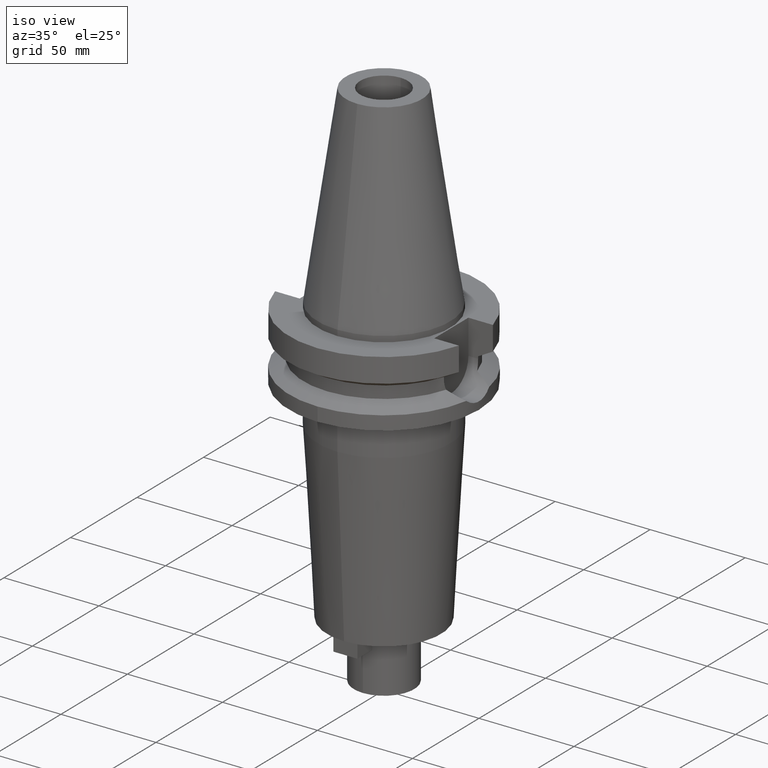
[diagram: clean part render]
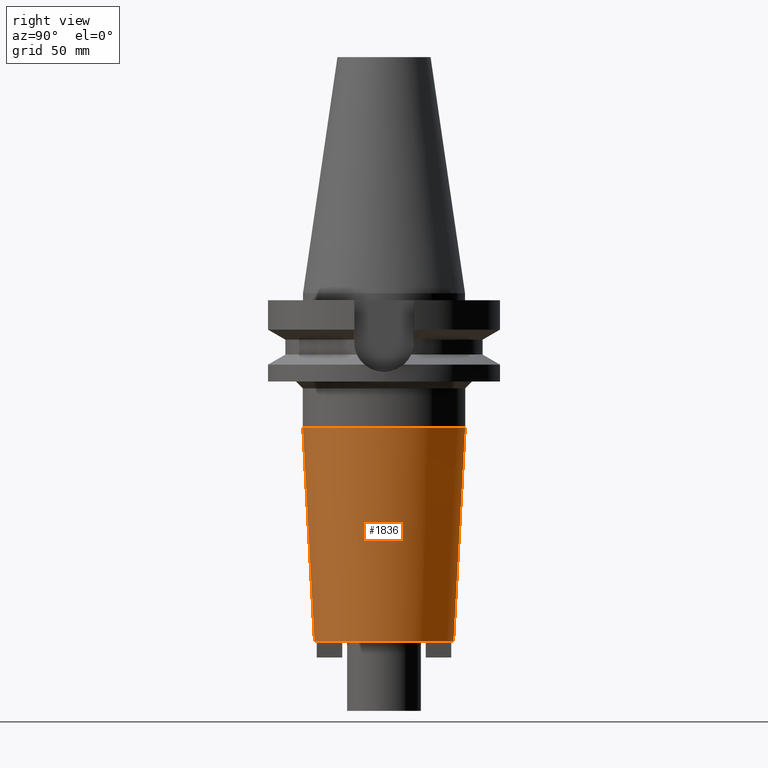
[diagram: tour spotlight — one face highlighted and labeled with its STEP entity id]
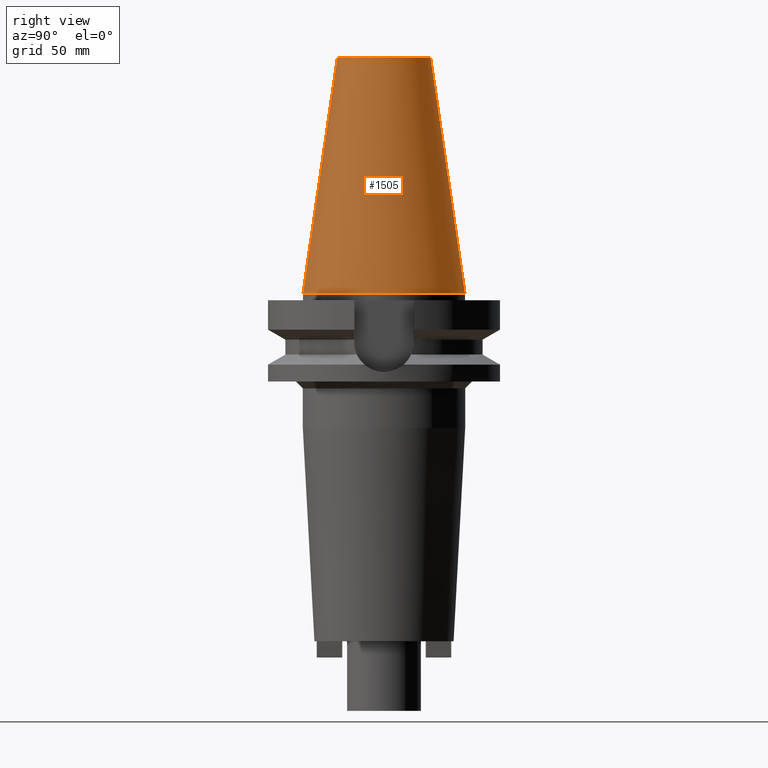
[diagram: tour spotlight — one face highlighted and labeled with its STEP entity id]
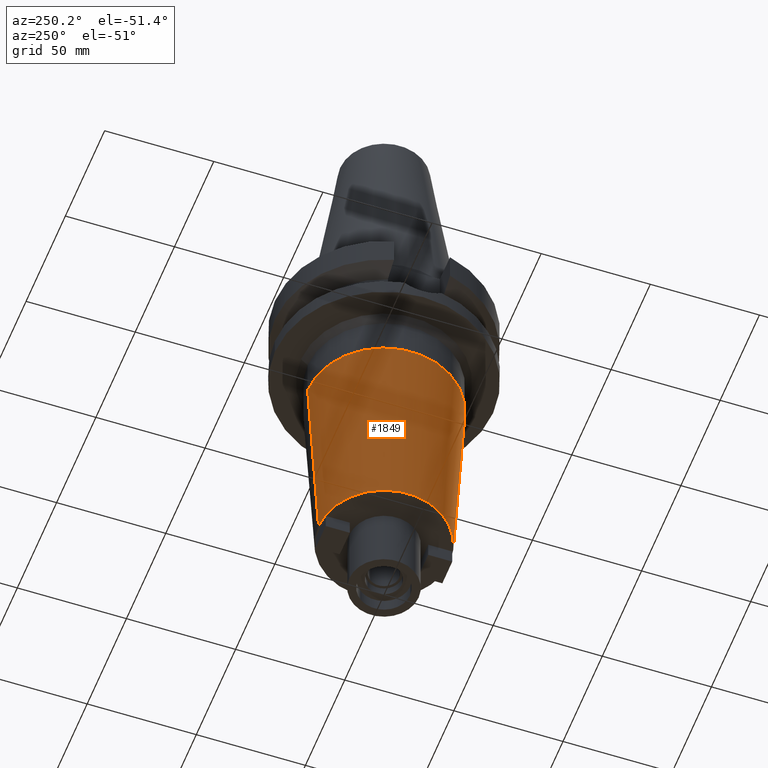
[diagram: tour spotlight — one face highlighted and labeled with its STEP entity id]
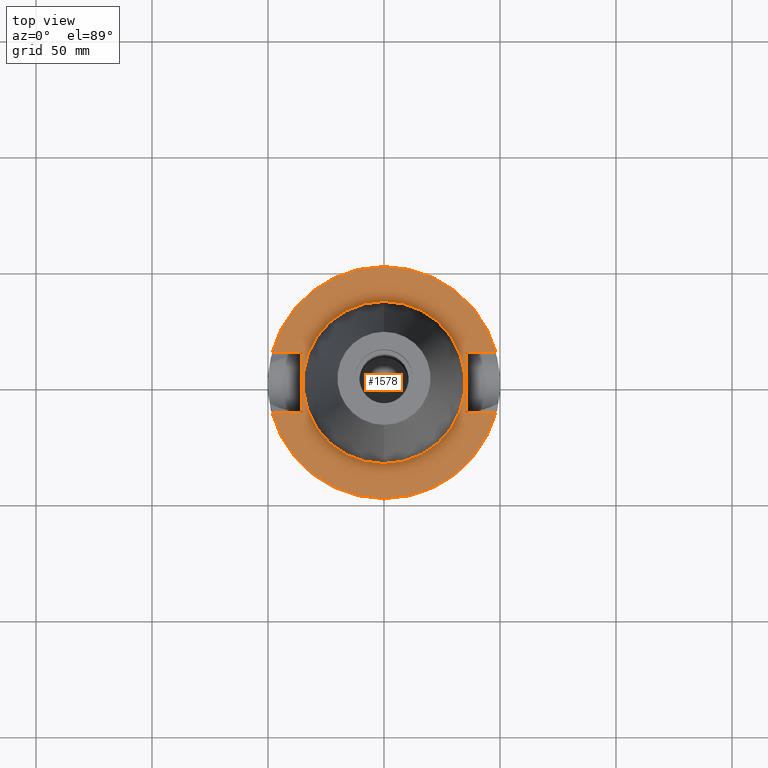
[diagram: tour spotlight — one face highlighted and labeled with its STEP entity id]
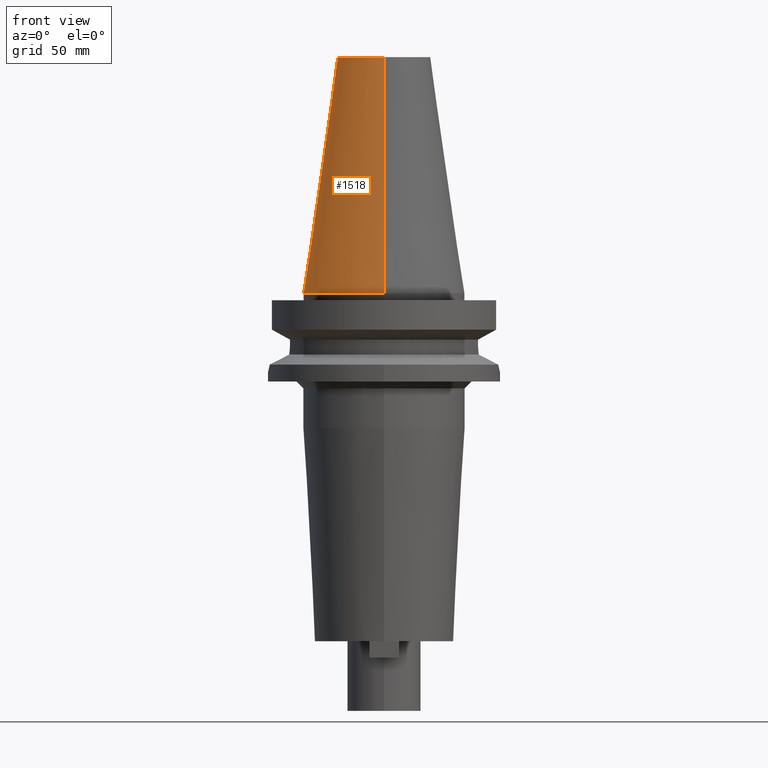
[diagram: tour spotlight — one face highlighted and labeled with its STEP entity id]
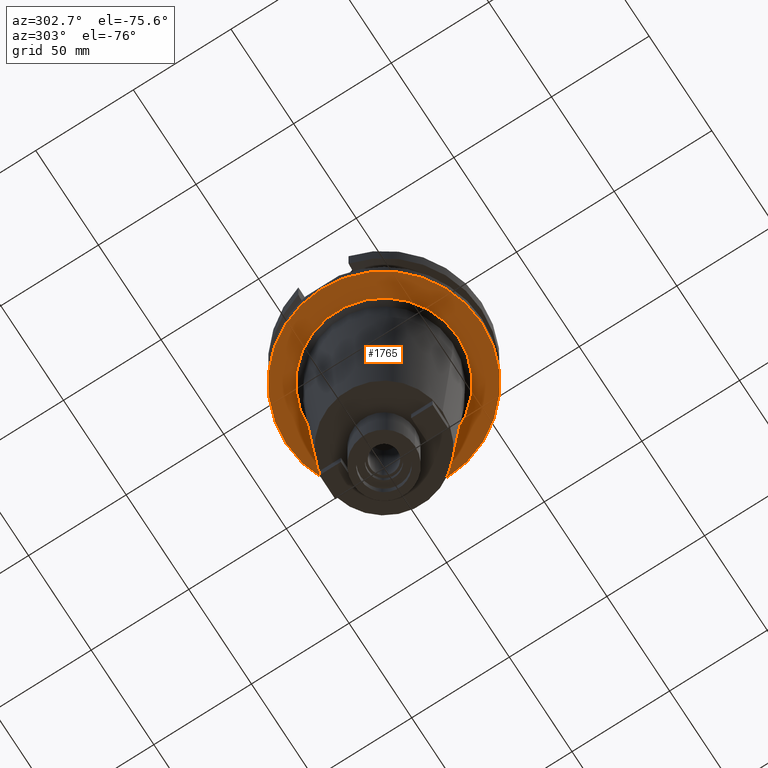
[diagram: tour spotlight — one face highlighted and labeled with its STEP entity id]
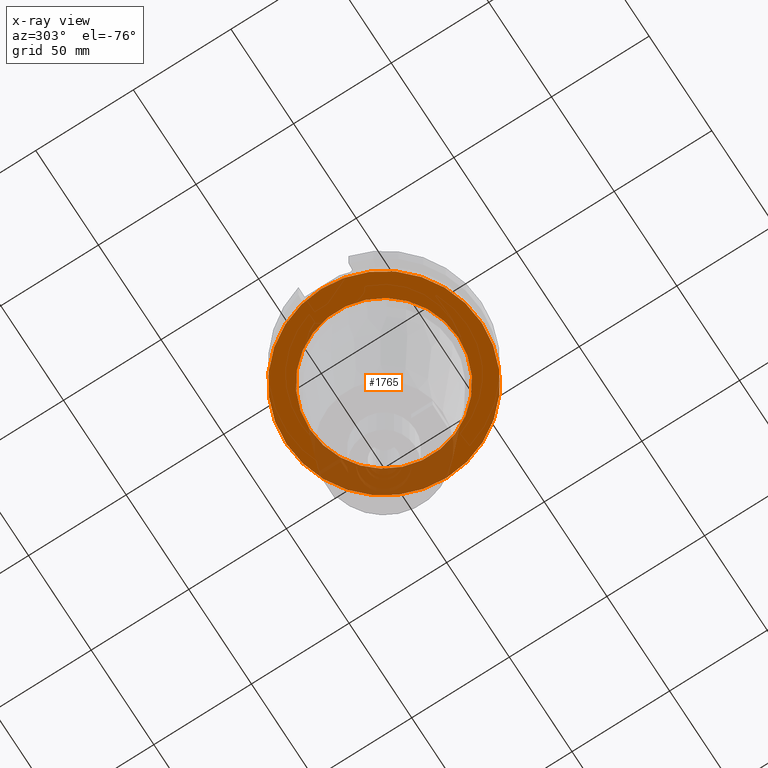
[diagram: x-ray of the same camera — body ghosted, this tour face saturated]
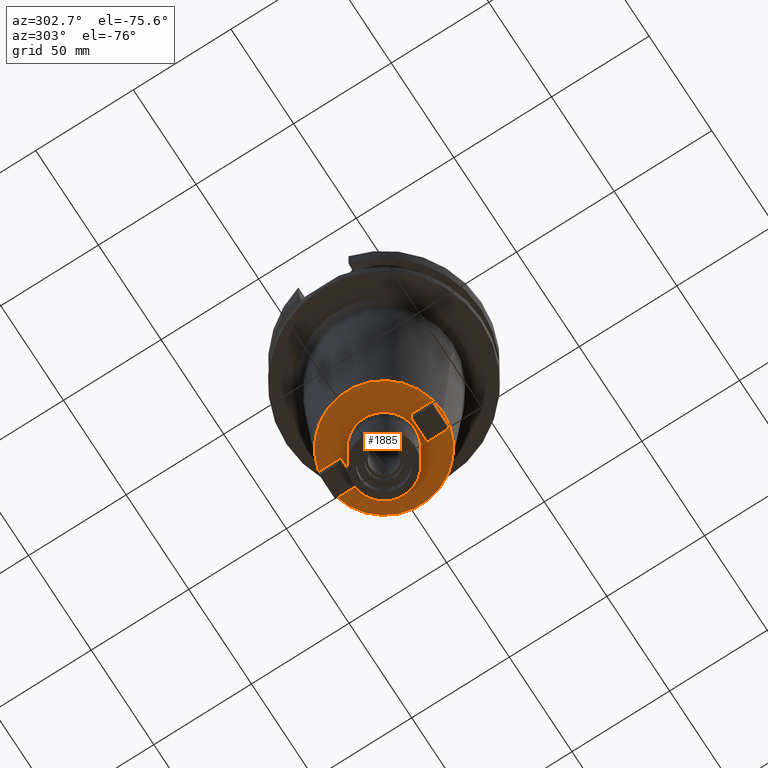
[diagram: tour spotlight — one face highlighted and labeled with its STEP entity id]
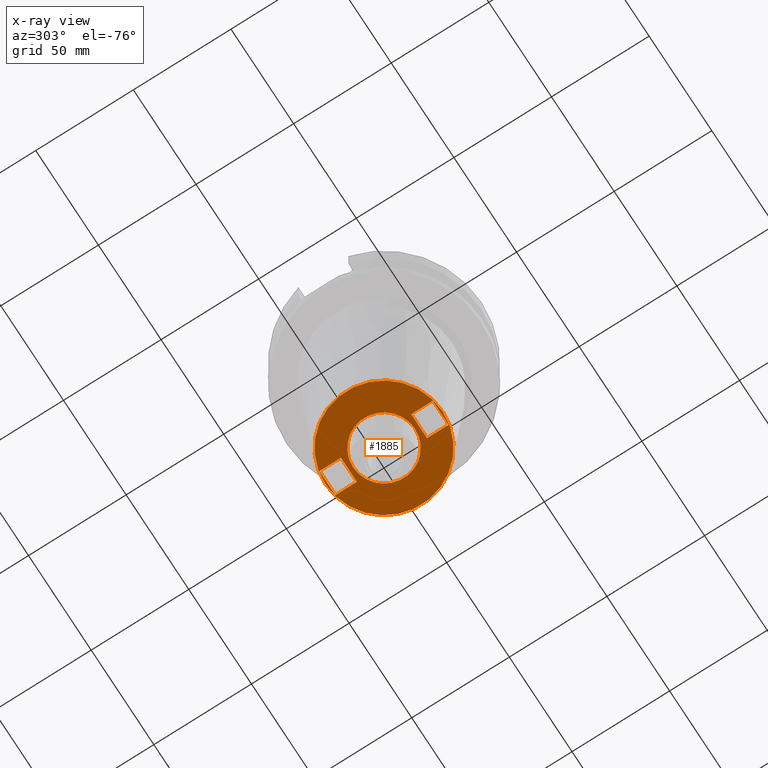
[diagram: x-ray of the same camera — body ghosted, this tour face saturated]
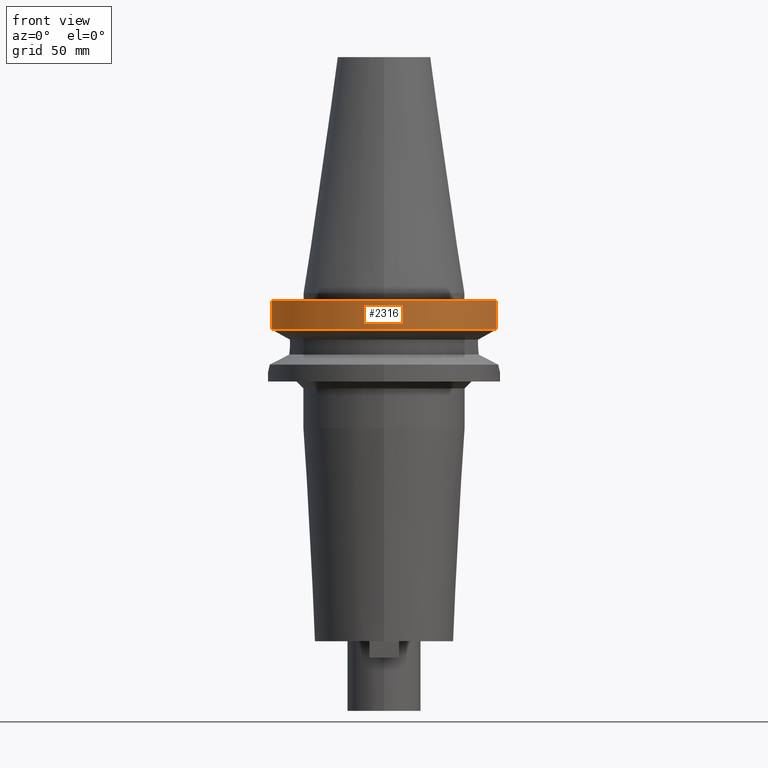
[diagram: tour spotlight — one face highlighted and labeled with its STEP entity id]
A machine part: a face-by-face anatomy tour. The part has 62 B-rep faces; the first image is the clean iso view, then the 8 largest visible faces are spotlighted one at a time (largest first), each with its STEP entity span.

Face 1 — right view, entity #1836. In plain terms, the highlighted conical surface has half-angle 3.111 deg.
Definition (entity closure, byte-faithful):
#577=DIRECTION('',(0.E0,-5.426774024273E-2,-9.985264204662E-1));
#578=VECTOR('',#577,9.213576938410E1);
#579=CARTESIAN_POINT('',(0.E0,3.5E1,-5.8E1));
#580=LINE('',#579,#578);
#584=CARTESIAN_POINT('',(0.E0,0.E0,-5.8E1));
#585=DIRECTION('',(0.E0,0.E0,1.E0));
#586=DIRECTION('',(0.E0,-1.E0,0.E0));
#587=AXIS2_PLACEMENT_3D('',#584,#585,#586);
#600=DIRECTION('',(0.E0,5.426774024273E-2,-9.985264204662E-1));
#601=VECTOR('',#600,9.213576938410E1);
#602=CARTESIAN_POINT('',(0.E0,-3.5E1,-5.8E1));
#603=LINE('',#602,#601);
#615=CARTESIAN_POINT('',(0.E0,0.E0,-1.5E2));
#616=DIRECTION('',(0.E0,0.E0,1.E0));
#617=DIRECTION('',(0.E0,-1.E0,0.E0));
#618=AXIS2_PLACEMENT_3D('',#615,#616,#617);
#1308=CARTESIAN_POINT('',(0.E0,3.5E1,-5.8E1));
#1309=VERTEX_POINT('',#1308);
#1310=CARTESIAN_POINT('',(0.E0,-3.5E1,-5.8E1));
#1311=VERTEX_POINT('',#1310);
#1312=CARTESIAN_POINT('',(0.E0,3.E1,-1.5E2));
#1313=VERTEX_POINT('',#1312);
#1314=CARTESIAN_POINT('',(0.E0,-3.E1,-1.5E2));
#1315=VERTEX_POINT('',#1314);
#1822=CARTESIAN_POINT('',(0.E0,0.E0,-1.04E2));
#1823=DIRECTION('',(0.E0,0.E0,1.E0));
#1824=DIRECTION('',(0.E0,1.E0,0.E0));
#1825=AXIS2_PLACEMENT_3D('',#1822,#1823,#1824);
#1826=CONICAL_SURFACE('',#1825,3.25E1,3.110840653491E0);
#1828=ORIENTED_EDGE('',*,*,#1827,.T.);
#1830=ORIENTED_EDGE('',*,*,#1829,.F.);
#1832=ORIENTED_EDGE('',*,*,#1831,.F.);
#1833=ORIENTED_EDGE('',*,*,#1815,.T.);
#1834=EDGE_LOOP('',(#1828,#1830,#1832,#1833));
#1835=FACE_OUTER_BOUND('',#1834,.F.);
#588=CIRCLE('',#587,3.5E1);
#619=CIRCLE('',#618,3.E1);
#1815=EDGE_CURVE('',#1311,#1309,#588,.T.);
#1827=EDGE_CURVE('',#1309,#1313,#580,.T.);
#1829=EDGE_CURVE('',#1315,#1313,#619,.T.);
#1831=EDGE_CURVE('',#1311,#1315,#603,.T.);
#1836=ADVANCED_FACE('',(#1835),#1826,.T.);

Face 2 — right view, entity #1505. In plain terms, the highlighted conical surface has half-angle 8.297 deg.
Definition (entity closure, byte-faithful):
#94=CARTESIAN_POINT('',(0.E0,1.847992019913E-14,1.018E2));
#95=DIRECTION('',(0.E0,0.E0,-1.E0));
#96=DIRECTION('',(0.E0,1.E0,0.E0));
#97=AXIS2_PLACEMENT_3D('',#94,#95,#96);
#126=DIRECTION('',(0.E0,1.443043893539E-1,-9.895333461856E-1));
#127=VECTOR('',#126,1.028767755957E2);
#128=CARTESIAN_POINT('',(0.E0,2.007942971896E1,1.018E2));
#129=LINE('',#128,#127);
#133=CARTESIAN_POINT('',(0.E0,1.847992019913E-14,6.252776074689E-13));
#134=DIRECTION('',(0.E0,0.E0,-1.E0));
#135=DIRECTION('',(0.E0,1.E0,0.E0));
#136=AXIS2_PLACEMENT_3D('',#133,#134,#135);
#141=DIRECTION('',(0.E0,-1.443043893539E-1,-9.895333461856E-1));
#142=VECTOR('',#141,1.028767755957E2);
#143=CARTESIAN_POINT('',(0.E0,-2.007942971896E1,1.018E2));
#144=LINE('',#143,#142);
#1214=CARTESIAN_POINT('',(0.E0,2.007942971896E1,1.018E2));
#1215=CARTESIAN_POINT('',(0.E0,-2.007942971896E1,1.018E2));
#1216=VERTEX_POINT('',#1214);
#1217=VERTEX_POINT('',#1215);
#1218=CARTESIAN_POINT('',(0.E0,3.4925E1,5.400124791777E-13));
#1219=VERTEX_POINT('',#1218);
#1220=CARTESIAN_POINT('',(0.E0,-3.4925E1,6.252776074689E-13));
#1221=VERTEX_POINT('',#1220);
#1491=CARTESIAN_POINT('',(0.E0,1.847992019913E-14,5.09E1));
#1492=DIRECTION('',(0.E0,0.E0,-1.E0));
#1493=DIRECTION('',(0.E0,-1.E0,0.E0));
#1494=AXIS2_PLACEMENT_3D('',#1491,#1492,#1493);
#1495=CONICAL_SURFACE('',#1494,2.750221485948E1,8.297E0);
#1497=ORIENTED_EDGE('',*,*,#1496,.T.);
#1499=ORIENTED_EDGE('',*,*,#1498,.T.);
#1501=ORIENTED_EDGE('',*,*,#1500,.F.);
#1502=ORIENTED_EDGE('',*,*,#1480,.F.);
#1503=EDGE_LOOP('',(#1497,#1499,#1501,#1502));
#1504=FACE_OUTER_BOUND('',#1503,.F.);
#98=CIRCLE('',#97,2.007942971896E1);
#137=CIRCLE('',#136,3.4925E1);
#1480=EDGE_CURVE('',#1216,#1217,#98,.T.);
#1496=EDGE_CURVE('',#1216,#1219,#129,.T.);
#1498=EDGE_CURVE('',#1219,#1221,#137,.T.);
#1500=EDGE_CURVE('',#1217,#1221,#144,.T.);
#1505=ADVANCED_FACE('',(#1504),#1495,.T.);

Face 3 — auxiliary view, entity #1849. In plain terms, the highlighted conical surface has half-angle 3.111 deg.
Definition (entity closure, byte-faithful):
#577=DIRECTION('',(0.E0,-5.426774024273E-2,-9.985264204662E-1));
#578=VECTOR('',#577,9.213576938410E1);
#579=CARTESIAN_POINT('',(0.E0,3.5E1,-5.8E1));
#580=LINE('',#579,#578);
#592=CARTESIAN_POINT('',(0.E0,0.E0,-5.8E1));
#593=DIRECTION('',(0.E0,0.E0,1.E0));
#594=DIRECTION('',(0.E0,1.E0,0.E0));
#595=AXIS2_PLACEMENT_3D('',#592,#593,#594);
#600=DIRECTION('',(0.E0,5.426774024273E-2,-9.985264204662E-1));
#601=VECTOR('',#600,9.213576938410E1);
#602=CARTESIAN_POINT('',(0.E0,-3.5E1,-5.8E1));
#603=LINE('',#602,#601);
#607=CARTESIAN_POINT('',(0.E0,0.E0,-1.5E2));
#608=DIRECTION('',(0.E0,0.E0,1.E0));
#609=DIRECTION('',(0.E0,1.E0,0.E0));
#610=AXIS2_PLACEMENT_3D('',#607,#608,#609);
#1308=CARTESIAN_POINT('',(0.E0,3.5E1,-5.8E1));
#1309=VERTEX_POINT('',#1308);
#1310=CARTESIAN_POINT('',(0.E0,-3.5E1,-5.8E1));
#1311=VERTEX_POINT('',#1310);
#1312=CARTESIAN_POINT('',(0.E0,3.E1,-1.5E2));
#1313=VERTEX_POINT('',#1312);
#1314=CARTESIAN_POINT('',(0.E0,-3.E1,-1.5E2));
#1315=VERTEX_POINT('',#1314);
#1837=CARTESIAN_POINT('',(0.E0,0.E0,-1.04E2));
#1838=DIRECTION('',(0.E0,0.E0,1.E0));
#1839=DIRECTION('',(0.E0,1.E0,0.E0));
#1840=AXIS2_PLACEMENT_3D('',#1837,#1838,#1839);
#1841=CONICAL_SURFACE('',#1840,3.25E1,3.110840653491E0);
#1842=ORIENTED_EDGE('',*,*,#1827,.F.);
#1843=ORIENTED_EDGE('',*,*,#1804,.T.);
#1844=ORIENTED_EDGE('',*,*,#1831,.T.);
#1846=ORIENTED_EDGE('',*,*,#1845,.F.);
#1847=EDGE_LOOP('',(#1842,#1843,#1844,#1846));
#1848=FACE_OUTER_BOUND('',#1847,.F.);
#596=CIRCLE('',#595,3.5E1);
#611=CIRCLE('',#610,3.E1);
#1804=EDGE_CURVE('',#1309,#1311,#596,.T.);
#1827=EDGE_CURVE('',#1309,#1313,#580,.T.);
#1831=EDGE_CURVE('',#1311,#1315,#603,.T.);
#1845=EDGE_CURVE('',#1313,#1315,#611,.T.);
#1849=ADVANCED_FACE('',(#1848),#1841,.T.);

Face 4 — top view, entity #1578. In plain terms, the highlighted planar face has unit normal (0, 0, -1).
Definition (entity closure, byte-faithful):
#170=DIRECTION('',(0.E0,1.E0,0.E0));
#171=VECTOR('',#170,2.57E1);
#172=CARTESIAN_POINT('',(-3.54E1,-1.285E1,-3.E0));
#173=LINE('',#172,#171);
#177=DIRECTION('',(-1.E0,0.E0,0.E0));
#178=VECTOR('',#177,1.292057015392E1);
#179=CARTESIAN_POINT('',(-3.54E1,1.285E1,-3.E0));
#180=LINE('',#179,#178);
#184=CARTESIAN_POINT('',(0.E0,2.643889974679E-14,-3.E0));
#185=DIRECTION('',(0.E0,0.E0,-1.E0));
#186=DIRECTION('',(-9.664114030784E-1,2.57E-1,0.E0));
#187=AXIS2_PLACEMENT_3D('',#184,#185,#186);
#192=CARTESIAN_POINT('',(0.E0,2.643889974679E-14,-3.E0));
#193=DIRECTION('',(0.E0,0.E0,-1.E0));
#194=DIRECTION('',(0.E0,1.E0,0.E0));
#195=AXIS2_PLACEMENT_3D('',#192,#193,#194);
#200=DIRECTION('',(0.E0,-1.E0,0.E0));
#201=VECTOR('',#200,2.57E1);
#202=CARTESIAN_POINT('',(3.54E1,1.285E1,-3.E0));
#203=LINE('',#202,#201);
#207=DIRECTION('',(1.E0,0.E0,0.E0));
#208=VECTOR('',#207,1.292057015392E1);
#209=CARTESIAN_POINT('',(3.54E1,-1.285E1,-3.E0));
#210=LINE('',#209,#208);
#214=CARTESIAN_POINT('',(0.E0,2.643889974679E-14,-3.E0));
#215=DIRECTION('',(0.E0,0.E0,-1.E0));
#216=DIRECTION('',(9.664114030784E-1,-2.57E-1,0.E0));
#217=AXIS2_PLACEMENT_3D('',#214,#215,#216);
#222=CARTESIAN_POINT('',(0.E0,2.643889974679E-14,-3.E0));
#223=DIRECTION('',(0.E0,0.E0,-1.E0));
#224=DIRECTION('',(0.E0,-1.E0,0.E0));
#225=AXIS2_PLACEMENT_3D('',#222,#223,#224);
#230=CARTESIAN_POINT('',(0.E0,2.643889974679E-14,-3.E0));
#231=DIRECTION('',(0.E0,0.E0,1.E0));
#232=DIRECTION('',(0.E0,1.E0,0.E0));
#233=AXIS2_PLACEMENT_3D('',#230,#231,#232);
#238=CARTESIAN_POINT('',(0.E0,2.643889974679E-14,-3.E0));
#239=DIRECTION('',(0.E0,0.E0,1.E0));
#240=DIRECTION('',(0.E0,-1.E0,0.E0));
#241=AXIS2_PLACEMENT_3D('',#238,#239,#240);
#276=DIRECTION('',(-1.E0,0.E0,0.E0));
#277=VECTOR('',#276,1.292057015392E1);
#278=CARTESIAN_POINT('',(-3.54E1,-1.285E1,-3.E0));
#279=LINE('',#278,#277);
#1039=DIRECTION('',(1.E0,0.E0,0.E0));
#1040=VECTOR('',#1039,1.292057015392E1);
#1041=CARTESIAN_POINT('',(3.54E1,1.285E1,-3.E0));
#1042=LINE('',#1041,#1040);
#1222=CARTESIAN_POINT('',(0.E0,3.4925E1,-3.E0));
#1223=VERTEX_POINT('',#1222);
#1224=CARTESIAN_POINT('',(0.E0,-3.4925E1,-3.E0));
#1225=VERTEX_POINT('',#1224);
#1226=CARTESIAN_POINT('',(-3.54E1,-1.285E1,-3.E0));
#1227=CARTESIAN_POINT('',(-3.54E1,1.285E1,-3.E0));
#1228=VERTEX_POINT('',#1226);
#1229=VERTEX_POINT('',#1227);
#1230=CARTESIAN_POINT('',(-4.832057015392E1,1.285E1,-3.E0));
#1231=VERTEX_POINT('',#1230);
#1232=CARTESIAN_POINT('',(-1.065814103640E-14,5.E1,-3.E0));
#1233=CARTESIAN_POINT('',(4.832057015392E1,1.285E1,-3.E0));
#1234=VERTEX_POINT('',#1232);
#1235=VERTEX_POINT('',#1233);
#1236=CARTESIAN_POINT('',(3.54E1,1.285E1,-3.E0));
#1237=VERTEX_POINT('',#1236);
#1238=CARTESIAN_POINT('',(3.54E1,-1.285E1,-3.E0));
#1239=VERTEX_POINT('',#1238);
#1240=CARTESIAN_POINT('',(4.832057015392E1,-1.285E1,-3.E0));
#1241=VERTEX_POINT('',#1240);
#1242=CARTESIAN_POINT('',(1.065814103640E-14,-5.E1,-3.E0));
#1243=CARTESIAN_POINT('',(-4.832057015392E1,-1.285E1,-3.E0));
#1244=VERTEX_POINT('',#1242);
#1245=VERTEX_POINT('',#1243);
#1547=CARTESIAN_POINT('',(0.E0,1.187907395173E-14,-3.E0));
#1548=DIRECTION('',(0.E0,0.E0,-1.E0));
#1549=DIRECTION('',(0.E0,-1.E0,0.E0));
#1550=AXIS2_PLACEMENT_3D('',#1547,#1548,#1549);
#1551=PLANE('',#1550);
#1553=ORIENTED_EDGE('',*,*,#1552,.T.);
#1555=ORIENTED_EDGE('',*,*,#1554,.T.);
#1557=ORIENTED_EDGE('',*,*,#1556,.T.);
#1559=ORIENTED_EDGE('',*,*,#1558,.T.);
#1561=ORIENTED_EDGE('',*,*,#1560,.F.);
#1563=ORIENTED_EDGE('',*,*,#1562,.T.);
#1565=ORIENTED_EDGE('',*,*,#1564,.T.);
#1567=ORIENTED_EDGE('',*,*,#1566,.T.);
#1569=ORIENTED_EDGE('',*,*,#1568,.T.);
#1571=ORIENTED_EDGE('',*,*,#1570,.F.);
#1572=EDGE_LOOP('',(#1553,#1555,#1557,#1559,#1561,#1563,#1565,#1567,#1569,
#1571));
#1573=FACE_OUTER_BOUND('',#1572,.F.);
#1574=ORIENTED_EDGE('',*,*,#1529,.T.);
#1575=ORIENTED_EDGE('',*,*,#1540,.T.);
#1576=EDGE_LOOP('',(#1574,#1575));
#1577=FACE_BOUND('',#1576,.F.);
#188=CIRCLE('',#187,5.E1);
#196=CIRCLE('',#195,5.E1);
#218=CIRCLE('',#217,5.E1);
#226=CIRCLE('',#225,5.E1);
#234=CIRCLE('',#233,3.4925E1);
#242=CIRCLE('',#241,3.4925E1);
#1529=EDGE_CURVE('',#1223,#1225,#234,.T.);
#1540=EDGE_CURVE('',#1225,#1223,#242,.T.);
#1552=EDGE_CURVE('',#1228,#1229,#173,.T.);
#1554=EDGE_CURVE('',#1229,#1231,#180,.T.);
#1556=EDGE_CURVE('',#1231,#1234,#188,.T.);
#1558=EDGE_CURVE('',#1234,#1235,#196,.T.);
#1560=EDGE_CURVE('',#1237,#1235,#1042,.T.);
#1562=EDGE_CURVE('',#1237,#1239,#203,.T.);
#1564=EDGE_CURVE('',#1239,#1241,#210,.T.);
#1566=EDGE_CURVE('',#1241,#1244,#218,.T.);
#1568=EDGE_CURVE('',#1244,#1245,#226,.T.);
#1570=EDGE_CURVE('',#1228,#1245,#279,.T.);
#1578=ADVANCED_FACE('',(#1573,#1577),#1551,.F.);

Face 5 — front view, entity #1518. In plain terms, the highlighted conical surface has half-angle 8.297 deg.
Definition (entity closure, byte-faithful):
#102=CARTESIAN_POINT('',(0.E0,1.847992019913E-14,1.018E2));
#103=DIRECTION('',(0.E0,0.E0,-1.E0));
#104=DIRECTION('',(0.E0,-1.E0,0.E0));
#105=AXIS2_PLACEMENT_3D('',#102,#103,#104);
#126=DIRECTION('',(0.E0,1.443043893539E-1,-9.895333461856E-1));
#127=VECTOR('',#126,1.028767755957E2);
#128=CARTESIAN_POINT('',(0.E0,2.007942971896E1,1.018E2));
#129=LINE('',#128,#127);
#141=DIRECTION('',(0.E0,-1.443043893539E-1,-9.895333461856E-1));
#142=VECTOR('',#141,1.028767755957E2);
#143=CARTESIAN_POINT('',(0.E0,-2.007942971896E1,1.018E2));
#144=LINE('',#143,#142);
#148=CARTESIAN_POINT('',(0.E0,1.847992019913E-14,6.252776074689E-13));
#149=DIRECTION('',(0.E0,0.E0,-1.E0));
#150=DIRECTION('',(0.E0,-1.E0,0.E0));
#151=AXIS2_PLACEMENT_3D('',#148,#149,#150);
#1214=CARTESIAN_POINT('',(0.E0,2.007942971896E1,1.018E2));
#1215=CARTESIAN_POINT('',(0.E0,-2.007942971896E1,1.018E2));
#1216=VERTEX_POINT('',#1214);
#1217=VERTEX_POINT('',#1215);
#1218=CARTESIAN_POINT('',(0.E0,3.4925E1,5.400124791777E-13));
#1219=VERTEX_POINT('',#1218);
#1220=CARTESIAN_POINT('',(0.E0,-3.4925E1,6.252776074689E-13));
#1221=VERTEX_POINT('',#1220);
#1506=CARTESIAN_POINT('',(0.E0,1.847992019913E-14,5.09E1));
#1507=DIRECTION('',(0.E0,0.E0,-1.E0));
#1508=DIRECTION('',(0.E0,-1.E0,0.E0));
#1509=AXIS2_PLACEMENT_3D('',#1506,#1507,#1508);
#1510=CONICAL_SURFACE('',#1509,2.750221485948E1,8.297E0);
#1511=ORIENTED_EDGE('',*,*,#1496,.F.);
#1512=ORIENTED_EDGE('',*,*,#1482,.F.);
#1513=ORIENTED_EDGE('',*,*,#1500,.T.);
#1515=ORIENTED_EDGE('',*,*,#1514,.T.);
#1516=EDGE_LOOP('',(#1511,#1512,#1513,#1515));
#1517=FACE_OUTER_BOUND('',#1516,.F.);
#106=CIRCLE('',#105,2.007942971896E1);
#152=CIRCLE('',#151,3.4925E1);
#1482=EDGE_CURVE('',#1217,#1216,#106,.T.);
#1496=EDGE_CURVE('',#1216,#1219,#129,.T.);
#1500=EDGE_CURVE('',#1217,#1221,#144,.T.);
#1514=EDGE_CURVE('',#1221,#1219,#152,.T.);
#1518=ADVANCED_FACE('',(#1517),#1510,.T.);

Face 6 — auxiliary view, entity #1765. An x-ray twin of the same camera follows (body ghosted, this face saturated) — the face is partly hidden behind the body. In plain terms, the highlighted planar face has unit normal (0, 0, -1).
Definition (entity closure, byte-faithful):
#501=CARTESIAN_POINT('',(0.E0,2.643889974679E-14,-3.8E1));
#502=DIRECTION('',(0.E0,0.E0,1.E0));
#503=DIRECTION('',(0.E0,1.E0,0.E0));
#504=AXIS2_PLACEMENT_3D('',#501,#502,#503);
#509=CARTESIAN_POINT('',(0.E0,2.643889974679E-14,-3.8E1));
#510=DIRECTION('',(0.E0,0.E0,1.E0));
#511=DIRECTION('',(0.E0,-1.E0,0.E0));
#512=AXIS2_PLACEMENT_3D('',#509,#510,#511);
#517=CARTESIAN_POINT('',(0.E0,0.E0,-3.8E1));
#518=DIRECTION('',(0.E0,0.E0,-1.E0));
#519=DIRECTION('',(0.E0,1.E0,0.E0));
#520=AXIS2_PLACEMENT_3D('',#517,#518,#519);
#525=CARTESIAN_POINT('',(0.E0,0.E0,-3.8E1));
#526=DIRECTION('',(0.E0,0.E0,-1.E0));
#527=DIRECTION('',(0.E0,-1.E0,0.E0));
#528=AXIS2_PLACEMENT_3D('',#525,#526,#527);
#1296=CARTESIAN_POINT('',(0.E0,5.E1,-3.8E1));
#1297=VERTEX_POINT('',#1296);
#1298=CARTESIAN_POINT('',(0.E0,-5.E1,-3.8E1));
#1299=VERTEX_POINT('',#1298);
#1300=CARTESIAN_POINT('',(0.E0,3.8E1,-3.8E1));
#1301=CARTESIAN_POINT('',(0.E0,-3.8E1,-3.8E1));
#1302=VERTEX_POINT('',#1300);
#1303=VERTEX_POINT('',#1301);
#1750=CARTESIAN_POINT('',(0.E0,0.E0,-3.8E1));
#1751=DIRECTION('',(0.E0,0.E0,-1.E0));
#1752=DIRECTION('',(0.E0,-1.E0,0.E0));
#1753=AXIS2_PLACEMENT_3D('',#1750,#1751,#1752);
#1754=PLANE('',#1753);
#1755=ORIENTED_EDGE('',*,*,#1743,.T.);
#1756=ORIENTED_EDGE('',*,*,#1710,.T.);
#1757=EDGE_LOOP('',(#1755,#1756));
#1758=FACE_OUTER_BOUND('',#1757,.F.);
#1760=ORIENTED_EDGE('',*,*,#1759,.T.);
#1762=ORIENTED_EDGE('',*,*,#1761,.T.);
#1763=EDGE_LOOP('',(#1760,#1762));
#1764=FACE_BOUND('',#1763,.F.);
#505=CIRCLE('',#504,5.E1);
#513=CIRCLE('',#512,5.E1);
#521=CIRCLE('',#520,3.8E1);
#529=CIRCLE('',#528,3.8E1);
#1710=EDGE_CURVE('',#1299,#1297,#513,.T.);
#1743=EDGE_CURVE('',#1297,#1299,#505,.T.);
#1759=EDGE_CURVE('',#1302,#1303,#521,.T.);
#1761=EDGE_CURVE('',#1303,#1302,#529,.T.);
#1765=ADVANCED_FACE('',(#1758,#1764),#1754,.T.);

Face 7 — auxiliary view, entity #1885. An x-ray twin of the same camera follows (body ghosted, this face saturated) — the face is partly hidden behind the body. In plain terms, the highlighted planar face has unit normal (0, 0, -1).
Definition (entity closure, byte-faithful):
#607=CARTESIAN_POINT('',(0.E0,0.E0,-1.5E2));
#608=DIRECTION('',(0.E0,0.E0,1.E0));
#609=DIRECTION('',(0.E0,1.E0,0.E0));
#610=AXIS2_PLACEMENT_3D('',#607,#608,#609);
#615=CARTESIAN_POINT('',(0.E0,0.E0,-1.5E2));
#616=DIRECTION('',(0.E0,0.E0,1.E0));
#617=DIRECTION('',(0.E0,-1.E0,0.E0));
#618=AXIS2_PLACEMENT_3D('',#615,#616,#617);
#623=CARTESIAN_POINT('',(0.E0,2.643889974679E-14,-1.5E2));
#624=DIRECTION('',(0.E0,0.E0,-1.E0));
#625=DIRECTION('',(0.E0,1.E0,0.E0));
#626=AXIS2_PLACEMENT_3D('',#623,#624,#625);
#631=CARTESIAN_POINT('',(0.E0,2.643889974679E-14,-1.5E2));
#632=DIRECTION('',(0.E0,0.E0,-1.E0));
#633=DIRECTION('',(0.E0,-1.E0,0.E0));
#634=AXIS2_PLACEMENT_3D('',#631,#632,#633);
#639=DIRECTION('',(0.E0,1.E0,0.E0));
#640=VECTOR('',#639,1.1E1);
#641=CARTESIAN_POINT('',(-6.35E0,1.8E1,-1.5E2));
#642=LINE('',#641,#640);
#646=DIRECTION('',(-1.E0,0.E0,0.E0));
#647=VECTOR('',#646,1.27E1);
#648=CARTESIAN_POINT('',(6.35E0,1.8E1,-1.5E2));
#649=LINE('',#648,#647);
#653=DIRECTION('',(0.E0,-1.E0,0.E0));
#654=VECTOR('',#653,1.1E1);
#655=CARTESIAN_POINT('',(6.35E0,-1.8E1,-1.5E2));
#656=LINE('',#655,#654);
#660=DIRECTION('',(1.E0,0.E0,0.E0));
#661=VECTOR('',#660,1.27E1);
#662=CARTESIAN_POINT('',(-6.35E0,-1.8E1,-1.5E2));
#663=LINE('',#662,#661);
#879=DIRECTION('',(0.E0,1.E0,0.E0));
#880=VECTOR('',#879,1.1E1);
#881=CARTESIAN_POINT('',(6.35E0,1.8E1,-1.5E2));
#882=LINE('',#881,#880);
#907=DIRECTION('',(-1.E0,0.E0,0.E0));
#908=VECTOR('',#907,1.27E1);
#909=CARTESIAN_POINT('',(6.35E0,2.9E1,-1.5E2));
#910=LINE('',#909,#908);
#949=DIRECTION('',(0.E0,-1.E0,0.E0));
#950=VECTOR('',#949,1.1E1);
#951=CARTESIAN_POINT('',(-6.35E0,-1.8E1,-1.5E2));
#952=LINE('',#951,#950);
#977=DIRECTION('',(1.E0,0.E0,0.E0));
#978=VECTOR('',#977,1.27E1);
#979=CARTESIAN_POINT('',(-6.35E0,-2.9E1,-1.5E2));
#980=LINE('',#979,#978);
#1312=CARTESIAN_POINT('',(0.E0,3.E1,-1.5E2));
#1313=VERTEX_POINT('',#1312);
#1314=CARTESIAN_POINT('',(0.E0,-3.E1,-1.5E2));
#1315=VERTEX_POINT('',#1314);
#1316=CARTESIAN_POINT('',(0.E0,1.5875E1,-1.5E2));
#1317=CARTESIAN_POINT('',(0.E0,-1.5875E1,-1.5E2));
#1318=VERTEX_POINT('',#1316);
#1319=VERTEX_POINT('',#1317);
#1320=CARTESIAN_POINT('',(-6.35E0,1.8E1,-1.5E2));
#1321=CARTESIAN_POINT('',(-6.35E0,2.9E1,-1.5E2));
#1322=VERTEX_POINT('',#1320);
#1323=VERTEX_POINT('',#1321);
#1324=CARTESIAN_POINT('',(6.35E0,2.9E1,-1.5E2));
#1325=VERTEX_POINT('',#1324);
#1326=CARTESIAN_POINT('',(6.35E0,1.8E1,-1.5E2));
#1327=VERTEX_POINT('',#1326);
#1328=CARTESIAN_POINT('',(6.35E0,-1.8E1,-1.5E2));
#1329=CARTESIAN_POINT('',(6.35E0,-2.9E1,-1.5E2));
#1330=VERTEX_POINT('',#1328);
#1331=VERTEX_POINT('',#1329);
#1332=CARTESIAN_POINT('',(-6.35E0,-2.9E1,-1.5E2));
#1333=VERTEX_POINT('',#1332);
#1334=CARTESIAN_POINT('',(-6.35E0,-1.8E1,-1.5E2));
#1335=VERTEX_POINT('',#1334);
#1850=CARTESIAN_POINT('',(0.E0,0.E0,-1.5E2));
#1851=DIRECTION('',(0.E0,0.E0,-1.E0));
#1852=DIRECTION('',(0.E0,-1.E0,0.E0));
#1853=AXIS2_PLACEMENT_3D('',#1850,#1851,#1852);
#1854=PLANE('',#1853);
#1855=ORIENTED_EDGE('',*,*,#1845,.T.);
#1856=ORIENTED_EDGE('',*,*,#1829,.T.);
#1857=EDGE_LOOP('',(#1855,#1856));
#1858=FACE_OUTER_BOUND('',#1857,.F.);
#1860=ORIENTED_EDGE('',*,*,#1859,.T.);
#1862=ORIENTED_EDGE('',*,*,#1861,.T.);
#1863=EDGE_LOOP('',(#1860,#1862));
#1864=FACE_BOUND('',#1863,.F.);
#1866=ORIENTED_EDGE('',*,*,#1865,.T.);
#1868=ORIENTED_EDGE('',*,*,#1867,.F.);
#1870=ORIENTED_EDGE('',*,*,#1869,.F.);
#1872=ORIENTED_EDGE('',*,*,#1871,.T.);
#1873=EDGE_LOOP('',(#1866,#1868,#1870,#1872));
#1874=FACE_BOUND('',#1873,.F.);
#1876=ORIENTED_EDGE('',*,*,#1875,.T.);
#1878=ORIENTED_EDGE('',*,*,#1877,.F.);
#1880=ORIENTED_EDGE('',*,*,#1879,.F.);
#1882=ORIENTED_EDGE('',*,*,#1881,.T.);
#1883=EDGE_LOOP('',(#1876,#1878,#1880,#1882));
#1884=FACE_BOUND('',#1883,.F.);
#611=CIRCLE('',#610,3.E1);
#619=CIRCLE('',#618,3.E1);
#627=CIRCLE('',#626,1.5875E1);
#635=CIRCLE('',#634,1.5875E1);
#1829=EDGE_CURVE('',#1315,#1313,#619,.T.);
#1845=EDGE_CURVE('',#1313,#1315,#611,.T.);
#1859=EDGE_CURVE('',#1318,#1319,#627,.T.);
#1861=EDGE_CURVE('',#1319,#1318,#635,.T.);
#1865=EDGE_CURVE('',#1322,#1323,#642,.T.);
#1867=EDGE_CURVE('',#1325,#1323,#910,.T.);
#1869=EDGE_CURVE('',#1327,#1325,#882,.T.);
#1871=EDGE_CURVE('',#1327,#1322,#649,.T.);
#1875=EDGE_CURVE('',#1330,#1331,#656,.T.);
#1877=EDGE_CURVE('',#1333,#1331,#980,.T.);
#1879=EDGE_CURVE('',#1335,#1333,#952,.T.);
#1881=EDGE_CURVE('',#1335,#1330,#663,.T.);
#1885=ADVANCED_FACE('',(#1858,#1864,#1874,#1884),#1854,.T.);

Face 8 — front view, entity #2316. In plain terms, the highlighted cylindrical surface (partial cylindrical patch) has radius 50 mm, axis along (0, 0, -1).
Definition (entity closure, byte-faithful):
#214=CARTESIAN_POINT('',(0.E0,2.643889974679E-14,-3.E0));
#215=DIRECTION('',(0.E0,0.E0,-1.E0));
#216=DIRECTION('',(9.664114030784E-1,-2.57E-1,0.E0));
#217=AXIS2_PLACEMENT_3D('',#214,#215,#216);
#222=CARTESIAN_POINT('',(0.E0,2.643889974679E-14,-3.E0));
#223=DIRECTION('',(0.E0,0.E0,-1.E0));
#224=DIRECTION('',(0.E0,-1.E0,0.E0));
#225=AXIS2_PLACEMENT_3D('',#222,#223,#224);
#1091=CARTESIAN_POINT('',(4.832056912780E1,-1.285000385858E1,
-1.566265767091E1));
#1096=CARTESIAN_POINT('',(0.E0,1.006319759054E-14,-1.566269223573E1));
#1097=DIRECTION('',(0.E0,0.E0,1.E0));
#1098=DIRECTION('',(-9.664114030784E-1,-2.57E-1,0.E0));
#1099=AXIS2_PLACEMENT_3D('',#1096,#1097,#1098);
#1104=CARTESIAN_POINT('',(0.E0,1.006319759054E-14,-1.566269223573E1));
#1105=DIRECTION('',(0.E0,0.E0,1.E0));
#1106=DIRECTION('',(0.E0,-1.E0,0.E0));
#1107=AXIS2_PLACEMENT_3D('',#1104,#1105,#1106);
#1128=DIRECTION('',(-8.100800697241E-8,3.046187202871E-7,1.E0));
#1129=VECTOR('',#1128,1.266265768251E1);
#1130=CARTESIAN_POINT('',(-4.832056912814E1,-1.285000385728E1,
-1.566265768251E1));
#1131=LINE('',#1130,#1129);
#1135=DIRECTION('',(-8.103519278861E-8,-3.047209459814E-7,-1.E0));
#1136=VECTOR('',#1135,1.266265767091E1);
#1137=CARTESIAN_POINT('',(4.832057015392E1,-1.285E1,-3.E0));
#1138=LINE('',#1137,#1136);
#1240=CARTESIAN_POINT('',(4.832057015392E1,-1.285E1,-3.E0));
#1241=VERTEX_POINT('',#1240);
#1242=CARTESIAN_POINT('',(1.065814103640E-14,-5.E1,-3.E0));
#1243=CARTESIAN_POINT('',(-4.832057015392E1,-1.285E1,-3.E0));
#1244=VERTEX_POINT('',#1242);
#1245=VERTEX_POINT('',#1243);
#1256=CARTESIAN_POINT('',(-4.832056912814E1,-1.285000385728E1,
-1.566265768251E1));
#1257=VERTEX_POINT('',#1256);
#1384=VERTEX_POINT('',#1091);
#1385=CARTESIAN_POINT('',(0.E0,-5.E1,-1.566269223573E1));
#1386=VERTEX_POINT('',#1385);
#2303=CARTESIAN_POINT('',(0.E0,2.643889974679E-14,1.1589E2));
#2304=DIRECTION('',(0.E0,0.E0,-1.E0));
#2305=DIRECTION('',(0.E0,-1.E0,0.E0));
#2306=AXIS2_PLACEMENT_3D('',#2303,#2304,#2305);
#2307=CYLINDRICAL_SURFACE('',#2306,5.E1);
#2308=ORIENTED_EDGE('',*,*,#1607,.T.);
#2309=ORIENTED_EDGE('',*,*,#1568,.F.);
#2310=ORIENTED_EDGE('',*,*,#1566,.F.);
#2311=ORIENTED_EDGE('',*,*,#2279,.T.);
#2312=ORIENTED_EDGE('',*,*,#2295,.F.);
#2313=ORIENTED_EDGE('',*,*,#2293,.F.);
#2314=EDGE_LOOP('',(#2308,#2309,#2310,#2311,#2312,#2313));
#2315=FACE_OUTER_BOUND('',#2314,.F.);
#218=CIRCLE('',#217,5.E1);
#226=CIRCLE('',#225,5.E1);
#1100=CIRCLE('',#1099,5.E1);
#1108=CIRCLE('',#1107,5.E1);
#1566=EDGE_CURVE('',#1241,#1244,#218,.T.);
#1568=EDGE_CURVE('',#1244,#1245,#226,.T.);
#1607=EDGE_CURVE('',#1257,#1245,#1131,.T.);
#2279=EDGE_CURVE('',#1241,#1384,#1138,.T.);
#2293=EDGE_CURVE('',#1257,#1386,#1100,.T.);
#2295=EDGE_CURVE('',#1386,#1384,#1108,.T.);
#2316=ADVANCED_FACE('',(#2315),#2307,.T.);